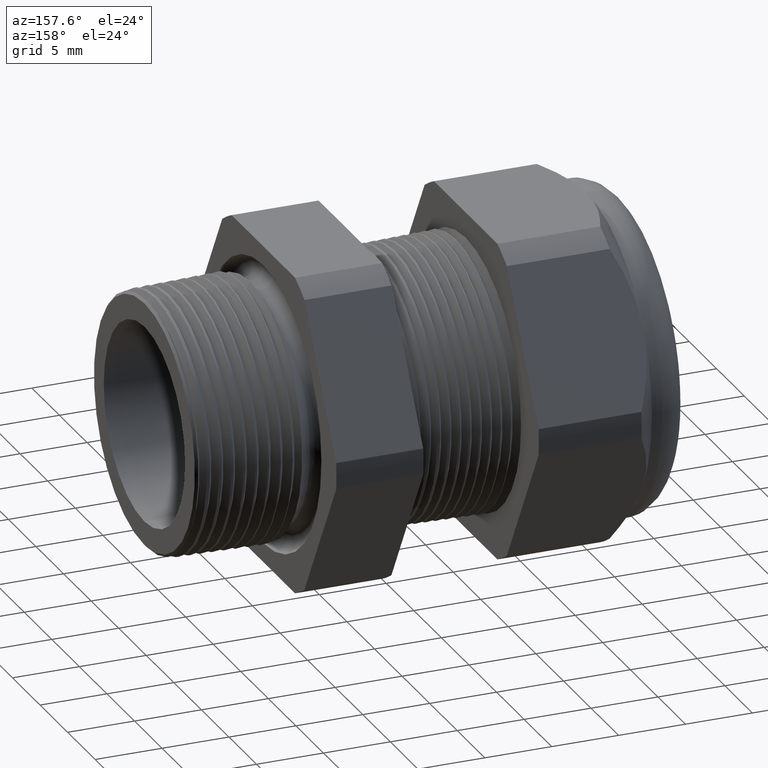
[diagram: clean part render]
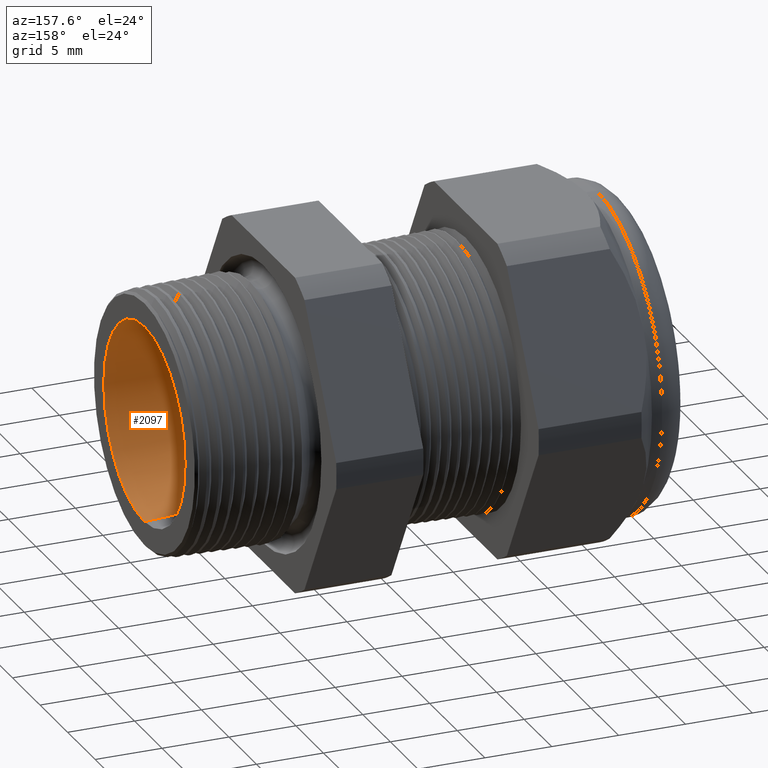
[diagram: same view with one face highlighted and labeled with its STEP entity id]
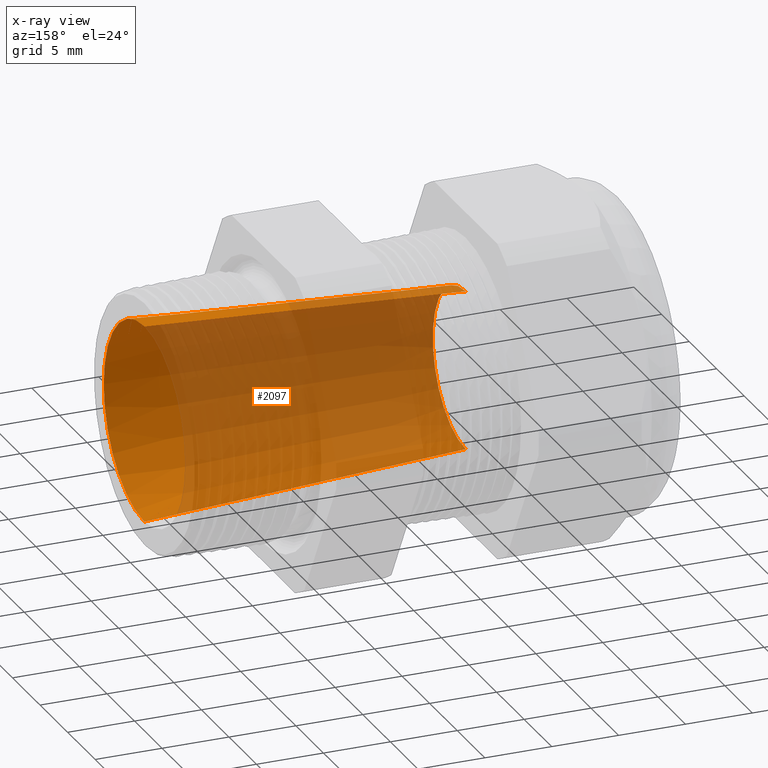
[diagram: x-ray of the same camera — body ghosted, the highlighted face saturated]
A machine part, auxiliary view. The second image highlights one B-rep face of the part: STEP entity #2097.
The next image is the same camera in x-ray: the body ghosted, the highlighted face saturated — about 78% of this face is hidden behind the body in this view.
In plain terms, the highlighted conical surface has half-angle 3.344 deg.
Its self-contained STEP definition (entity closure, byte-faithful):
#1949 = ORIENTED_EDGE ( 'NONE', *, *, #1968, .F. ) ;
#1965 = VERTEX_POINT ( 'NONE', #4077 ) ;
#1968 = EDGE_CURVE ( 'NONE', #1970, #1965, #4074, .T. ) ;
#1969 = ORIENTED_EDGE ( 'NONE', *, *, #1975, .T. ) ;
#1970 = VERTEX_POINT ( 'NONE', #4066 ) ;
#1971 = VERTEX_POINT ( 'NONE', #4130 ) ;
#1972 = EDGE_CURVE ( 'NONE', #1971, #1965, #4129, .T. ) ;
#1973 = VERTEX_POINT ( 'NONE', #4124 ) ;
#1974 = ORIENTED_EDGE ( 'NONE', *, *, #1972, .T. ) ;
#1975 = EDGE_CURVE ( 'NONE', #1973, #1971, #4123, .T. ) ;
#1976 = ORIENTED_EDGE ( 'NONE', *, *, #1977, .F. ) ;
#1977 = EDGE_CURVE ( 'NONE', #1973, #1970, #4119, .T. ) ;
#2047 = EDGE_LOOP ( 'NONE', ( #1976, #1969, #1974, #1949 ) ) ;
#2097 = ADVANCED_FACE ( 'NONE', ( #4371 ), #4370, .F. ) ;
#4066 = CARTESIAN_POINT ( 'NONE',  ( -0.9054330708661418900, 0.0000000000000000000, -0.2350000000000000100 ) ) ;
#4067 = DIRECTION ( 'NONE',  ( 0.9982972455772092200, 0.0000000000000000000, -0.05833189070274503300 ) ) ;
#4068 = VECTOR ( 'NONE', #4067, 39.37007874015748900 ) ;
#4069 = CARTESIAN_POINT ( 'NONE',  ( -0.9054330708661418900, 0.0000000000000000000, -0.2350000000000000100 ) ) ;
#4074 = LINE ( 'NONE', #4069, #4068 ) ;
#4077 = CARTESIAN_POINT ( 'NONE',  ( 0.03999999999999997300, 0.0000000000000000000, -0.2902429637573903900 ) ) ;
#4115 = DIRECTION ( 'NONE',  ( 0.0000000000000000000, 0.0000000000000000000, -1.000000000000000000 ) ) ;
#4116 = DIRECTION ( 'NONE',  ( 1.000000000000000000, 0.0000000000000000000, 0.0000000000000000000 ) ) ;
#4117 = CARTESIAN_POINT ( 'NONE',  ( -0.9054330708661418900, 0.0000000000000000000, 0.0000000000000000000 ) ) ;
#4118 = AXIS2_PLACEMENT_3D ( 'NONE', #4117, #4116, #4115 ) ;
#4119 = CIRCLE ( 'NONE', #4118, 0.2350000000000000100 ) ;
#4120 = DIRECTION ( 'NONE',  ( 0.9982972455772092200, 7.143596323732995500E-018, 0.05833189070274503300 ) ) ;
#4121 = VECTOR ( 'NONE', #4120, 39.37007874015748900 ) ;
#4122 = CARTESIAN_POINT ( 'NONE',  ( -0.9054330708661418900, 2.877919977996280400E-017, 0.2350000000000000100 ) ) ;
#4123 = LINE ( 'NONE', #4122, #4121 ) ;
#4124 = CARTESIAN_POINT ( 'NONE',  ( -0.9054330708661418900, 2.877919977996280400E-017, 0.2350000000000000100 ) ) ;
#4125 = DIRECTION ( 'NONE',  ( 0.0000000000000000000, 0.0000000000000000000, -1.000000000000000000 ) ) ;
#4126 = DIRECTION ( 'NONE',  ( 1.000000000000000000, 0.0000000000000000000, 0.0000000000000000000 ) ) ;
#4127 = CARTESIAN_POINT ( 'NONE',  ( 0.03999999999999997300, 0.0000000000000000000, 0.0000000000000000000 ) ) ;
#4128 = AXIS2_PLACEMENT_3D ( 'NONE', #4127, #4126, #4125 ) ;
#4129 = CIRCLE ( 'NONE', #4128, 0.2902429637573903900 ) ;
#4130 = CARTESIAN_POINT ( 'NONE',  ( 0.03999999999999997300, 3.554451165405293600E-017, 0.2902429637573903900 ) ) ;
#4365 = DIRECTION ( 'NONE',  ( 0.0000000000000000000, 0.0000000000000000000, -1.000000000000000000 ) ) ;
#4366 = DIRECTION ( 'NONE',  ( 1.000000000000000000, 0.0000000000000000000, 0.0000000000000000000 ) ) ;
#4367 = CARTESIAN_POINT ( 'NONE',  ( -0.9054330708661418900, 0.0000000000000000000, 0.0000000000000000000 ) ) ;
#4368 = AXIS2_PLACEMENT_3D ( 'NONE', #4367, #4366, #4365 ) ;
#4370 = CONICAL_SURFACE ( 'NONE', #4368, 0.2350000000000000100, 0.05836502156429304600 ) ;
#4371 = FACE_OUTER_BOUND ( 'NONE', #2047, .T. ) ;